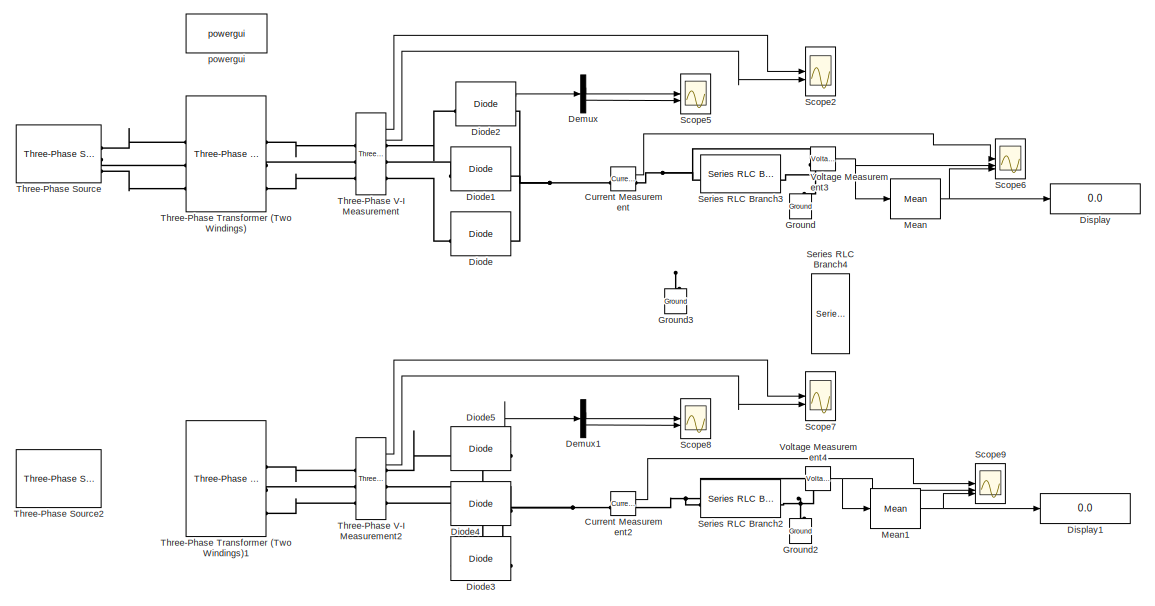
[diagram: root canvas - part 1/2, full width, top band]
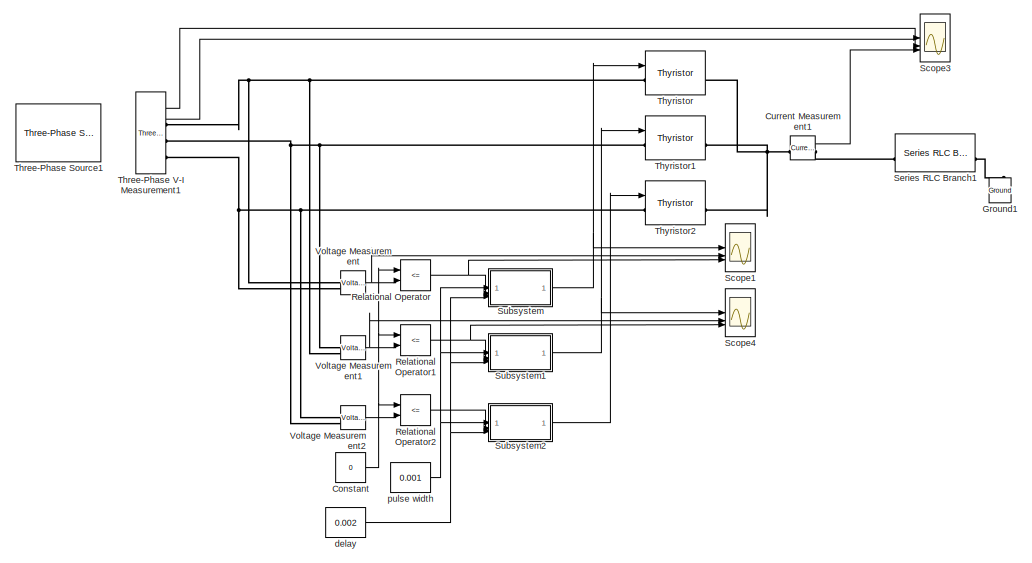
[diagram: root canvas - part 2/2, full width, bottom band]
MODEL slx_61ad994a2812
KIND model
CONFIG AbsTol = auto
CONFIG EnableMultiTasking = off
CONFIG FixedStep = auto
CONFIG MaxStep = auto
CONFIG MinStep = auto
CONFIG RelTol = 1e-3
CONFIG SampleTimeConstraint = Unconstrained
CONFIG SolverName = VariableStepAuto
CONFIG StartTime = 0.0
CONFIG StopTime = 0.065
BLOCK [Constant] Constant
  Value = 0
BLOCK [Reference] Current Measurement  REF=spsCurrentMeasurementLib/Current Measurement
  LibrarySourceBlock = sps_lib/Sensors and Measurements/Current Measurement
  SourceBlock = spsCurrentMeasurementLib/Current Measurement
  SourceType = Current Measurement
  UserDataPersistent = on
BLOCK [Reference] Current Measurement1  REF=spsCurrentMeasurementLib/Current Measurement
  LibrarySourceBlock = sps_lib/Sensors and Measurements/Current Measurement
  SourceBlock = spsCurrentMeasurementLib/Current Measurement
  SourceType = Current Measurement
  UserDataPersistent = on
BLOCK [Reference] Current Measurement2  REF=spsCurrentMeasurementLib/Current Measurement
  LibrarySourceBlock = sps_lib/Sensors and Measurements/Current Measurement
  SourceBlock = spsCurrentMeasurementLib/Current Measurement
  SourceType = Current Measurement
  UserDataPersistent = on
BLOCK [Demux] Demux
  Outputs = 2
BLOCK [Demux] Demux1
  Outputs = 2
BLOCK [Reference] Diode  REF=spsDiodeLib/Diode
  LibrarySourceBlock = sps_lib/Power Electronics/Diode
  SourceBlock = spsDiodeLib/Diode
  SourceType = Diode
BLOCK [Reference] Diode1  REF=spsDiodeLib/Diode
  LibrarySourceBlock = sps_lib/Power Electronics/Diode
  SourceBlock = spsDiodeLib/Diode
  SourceType = Diode
BLOCK [Reference] Diode2  REF=spsDiodeLib/Diode
  LibrarySourceBlock = sps_lib/Power Electronics/Diode
  SourceBlock = spsDiodeLib/Diode
  SourceType = Diode
BLOCK [Reference] Diode3  REF=spsDiodeLib/Diode
  LibrarySourceBlock = sps_lib/Power Electronics/Diode
  NameLocation = top
  SourceBlock = spsDiodeLib/Diode
  SourceType = Diode
BLOCK [Reference] Diode4  REF=spsDiodeLib/Diode
  LibrarySourceBlock = sps_lib/Power Electronics/Diode
  NameLocation = top
  SourceBlock = spsDiodeLib/Diode
  SourceType = Diode
BLOCK [Reference] Diode5  REF=spsDiodeLib/Diode
  LibrarySourceBlock = sps_lib/Power Electronics/Diode
  SourceBlock = spsDiodeLib/Diode
  SourceType = Diode
BLOCK [Display] Display
  Decimation = 1
BLOCK [Display] Display1
  Decimation = 1
BLOCK [Reference] Ground  REF=spsGroundLib/Ground
  LibrarySourceBlock = sps_lib/Utilities/Ground
  NameLocation = right
  SourceBlock = spsGroundLib/Ground
  SourceType = Ground
BLOCK [Reference] Ground1  REF=spsGroundLib/Ground
  LibrarySourceBlock = sps_lib/Utilities/Ground
  NameLocation = right
  SourceBlock = spsGroundLib/Ground
  SourceType = Ground
BLOCK [Reference] Ground2  REF=spsGroundLib/Ground
  LibrarySourceBlock = sps_lib/Utilities/Ground
  NameLocation = right
  SourceBlock = spsGroundLib/Ground
  SourceType = Ground
BLOCK [Reference] Ground3  REF=spsGroundLib/Ground
  LibrarySourceBlock = sps_lib/Utilities/Ground
  NameLocation = right
  SourceBlock = spsGroundLib/Ground
  SourceType = Ground
BLOCK [Reference] Mean  REF=spsMeanLib/Mean
  LibrarySourceBlock = sps_lib/Sensors and Measurements/Mean
  SourceBlock = spsMeanLib/Mean
  SourceType = Mean
BLOCK [Reference] Mean1  REF=spsMeanLib/Mean
  LibrarySourceBlock = sps_lib/Sensors and Measurements/Mean
  SourceBlock = spsMeanLib/Mean
  SourceType = Mean
BLOCK [RelationalOperator] Relational Operator
  InputSameDT = off
  Operator = <=
  OutDataTypeStr = boolean
  RndMeth = Simplest
BLOCK [RelationalOperator] Relational Operator1
  InputSameDT = off
  Operator = <=
  OutDataTypeStr = boolean
  RndMeth = Simplest
BLOCK [RelationalOperator] Relational Operator2
  InputSameDT = off
  Operator = <=
  OutDataTypeStr = boolean
  RndMeth = Simplest
BLOCK [Scope] Scope1
  Floating = off
  NumInputPorts = 3
  ScopeSpecificationString = Simulink.scopes.TimeScopeBlockCfg('CurrentConfiguration', extmgr.ConfigurationSet(extmgr.Configuration('Core','General UI',true),extmgr.Configuration('Core','Source UI',true),extmgr.Configuration('Sources','WiredSimulink',true),extmgr.Configuration('Visuals','Time Domain',true,'SerializedDisplays',{struct('MinYLimReal','-0.125','MaxYLimReal','1.125','YLabelReal','','MinYLimMag','0.00000','MaxYLimM...<+2721ch>
BLOCK [Scope] Scope2
  Floating = off
  NumInputPorts = 2
  ScopeSpecificationString = Simulink.scopes.TimeScopeBlockCfg('CurrentConfiguration', extmgr.ConfigurationSet(extmgr.Configuration('Core','General UI',true),extmgr.Configuration('Core','Source UI',true),extmgr.Configuration('Sources','WiredSimulink',true,'DataLoggingVariableName','ScopeData1'),extmgr.Configuration('Visuals','Time Domain',true,'SerializedDisplays',{struct('MinYLimReal','-1.84442','MaxYLimReal','1.84317','YLab...<+2211ch>
BLOCK [Scope] Scope3
  Floating = off
  NumInputPorts = 3
  ScopeSpecificationString = Simulink.scopes.TimeScopeBlockCfg('CurrentConfiguration', extmgr.ConfigurationSet(extmgr.Configuration('Core','General UI',true),extmgr.Configuration('Core','Source UI',true),extmgr.Configuration('Sources','WiredSimulink',true,'DataLoggingVariableName','ScopeData2'),extmgr.Configuration('Visuals','Time Domain',true,'SerializedDisplays',{struct('MinYLimReal','-26285.34486','MaxYLimReal','27773.6316...<+2990ch>
BLOCK [Scope] Scope4
  Floating = off
  NumInputPorts = 3
  ScopeSpecificationString = Simulink.scopes.TimeScopeBlockCfg('CurrentConfiguration', extmgr.ConfigurationSet(extmgr.Configuration('Core','General UI',true),extmgr.Configuration('Core','Source UI',true),extmgr.Configuration('Sources','WiredSimulink',true,'DataLoggingVariableName','ScopeData3'),extmgr.Configuration('Visuals','Time Domain',true,'SerializedDisplays',{struct('MinYLimReal','-0.125','MaxYLimReal','1.125','YLabelRe...<+2763ch>
BLOCK [Scope] Scope5
  Floating = off
  NumInputPorts = 2
  ScopeSpecificationString = Simulink.scopes.TimeScopeBlockCfg('CurrentConfiguration', extmgr.ConfigurationSet(extmgr.Configuration('Core','General UI',true),extmgr.Configuration('Core','Source UI',true),extmgr.Configuration('Sources','WiredSimulink',true,'DataLoggingVariableName','ScopeData1'),extmgr.Configuration('Visuals','Time Domain',true,'SerializedDisplays',{struct('MinYLimReal','-0.32095','MaxYLimReal','2.88859','YLab...<+2003ch>
BLOCK [Scope] Scope6
  Floating = off
  NumInputPorts = 3
  ScopeSpecificationString = Simulink.scopes.TimeScopeBlockCfg('CurrentConfiguration', extmgr.ConfigurationSet(extmgr.Configuration('Core','General UI',true),extmgr.Configuration('Core','Source UI',true),extmgr.Configuration('Sources','WiredSimulink',true,'DataLoggingVariableName','ScopeData2'),extmgr.Configuration('Visuals','Time Domain',true,'SerializedDisplays',{struct('MinYLimReal','-0.00051','MaxYLimReal','0.00457','YLab...<+2098ch>
BLOCK [Scope] Scope7
  Floating = off
  NumInputPorts = 2
  ScopeSpecificationString = Simulink.scopes.TimeScopeBlockCfg('CurrentConfiguration', extmgr.ConfigurationSet(extmgr.Configuration('Core','General UI',true),extmgr.Configuration('Core','Source UI',true),extmgr.Configuration('Sources','WiredSimulink',true,'DataLoggingVariableName','ScopeData1'),extmgr.Configuration('Visuals','Time Domain',true,'SerializedDisplays',{struct('MinYLimReal','-159.14062','MaxYLimReal','158.85917','...<+2217ch>
BLOCK [Scope] Scope8
  Floating = off
  NumInputPorts = 2
  ScopeSpecificationString = Simulink.scopes.TimeScopeBlockCfg('CurrentConfiguration', extmgr.ConfigurationSet(extmgr.Configuration('Core','General UI',true),extmgr.Configuration('Core','Source UI',true),extmgr.Configuration('Sources','WiredSimulink',true,'DataLoggingVariableName','ScopeData2'),extmgr.Configuration('Visuals','Time Domain',true,'SerializedDisplays',{struct('MinYLimReal','-0.32095','MaxYLimReal','2.88859','YLab...<+2003ch>
BLOCK [Scope] Scope9
  Floating = off
  NumInputPorts = 3
  ScopeSpecificationString = Simulink.scopes.TimeScopeBlockCfg('CurrentConfiguration', extmgr.ConfigurationSet(extmgr.Configuration('Core','General UI',true),extmgr.Configuration('Core','Source UI',true),extmgr.Configuration('Sources','WiredSimulink',true,'DataLoggingVariableName','ScopeData3'),extmgr.Configuration('Visuals','Time Domain',true,'SerializedDisplays',{struct('MinYLimReal','-1.20743','MaxYLimReal','0.13416','YLab...<+2102ch>
BLOCK [Reference] Series RLC Branch1  REF=spsSeriesRLCBranchLib/Series RLC Branch
  LibrarySourceBlock = sps_lib/Passives/Series RLC Branch
  SourceBlock = spsSeriesRLCBranchLib/Series RLC Branch
  SourceType = Series RLC Branch
BLOCK [Reference] Series RLC Branch2  REF=spsSeriesRLCBranchLib/Series RLC Branch
  LibrarySourceBlock = sps_lib/Passives/Series RLC Branch
  SourceBlock = spsSeriesRLCBranchLib/Series RLC Branch
  SourceType = Series RLC Branch
BLOCK [Reference] Series RLC Branch3  REF=spsSeriesRLCBranchLib/Series RLC Branch
  LibrarySourceBlock = sps_lib/Passives/Series RLC Branch
  SourceBlock = spsSeriesRLCBranchLib/Series RLC Branch
  SourceType = Series RLC Branch
BLOCK [Reference] Series RLC Branch4  REF=spsSeriesRLCBranchLib/Series RLC Branch
  LibrarySourceBlock = sps_lib/Passives/Series RLC Branch
  NameLocation = left
  SourceBlock = spsSeriesRLCBranchLib/Series RLC Branch
  SourceType = Series RLC Branch
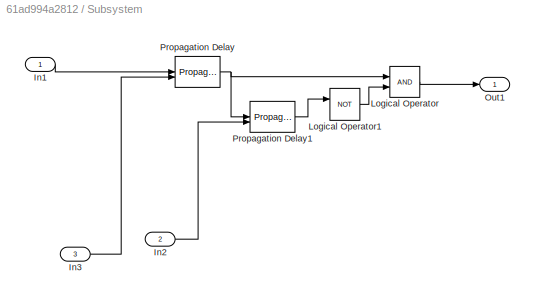
BLOCK [SubSystem] Subsystem
BLOCK [Inport] Subsystem/In1
BLOCK [Inport] Subsystem/In2
  Port = 2
BLOCK [Inport] Subsystem/In3
  Port = 3
BLOCK [Logic] Subsystem/Logical Operator
  AllPortsSameDT = off
  OutDataTypeStr = boolean
BLOCK [Logic] Subsystem/Logical Operator1
  AllPortsSameDT = off
  Operator = NOT
  OutDataTypeStr = boolean
BLOCK [Outport] Subsystem/Out1
BLOCK [PropagationDelay] Subsystem/Propagation Delay
BLOCK [PropagationDelay] Subsystem/Propagation Delay1
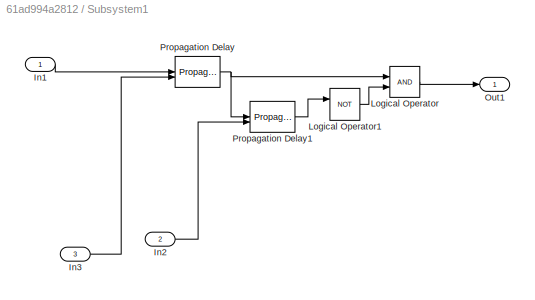
BLOCK [SubSystem] Subsystem1
BLOCK [Inport] Subsystem1/In1
BLOCK [Inport] Subsystem1/In2
  Port = 2
BLOCK [Inport] Subsystem1/In3
  Port = 3
BLOCK [Logic] Subsystem1/Logical Operator
  AllPortsSameDT = off
  OutDataTypeStr = boolean
BLOCK [Logic] Subsystem1/Logical Operator1
  AllPortsSameDT = off
  Operator = NOT
  OutDataTypeStr = boolean
BLOCK [Outport] Subsystem1/Out1
BLOCK [PropagationDelay] Subsystem1/Propagation Delay
BLOCK [PropagationDelay] Subsystem1/Propagation Delay1
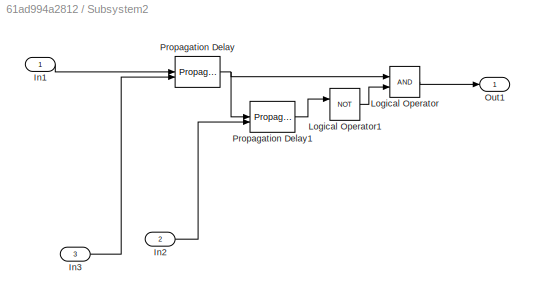
BLOCK [SubSystem] Subsystem2
BLOCK [Inport] Subsystem2/In1
BLOCK [Inport] Subsystem2/In2
  Port = 2
BLOCK [Inport] Subsystem2/In3
  Port = 3
BLOCK [Logic] Subsystem2/Logical Operator
  AllPortsSameDT = off
  OutDataTypeStr = boolean
BLOCK [Logic] Subsystem2/Logical Operator1
  AllPortsSameDT = off
  Operator = NOT
  OutDataTypeStr = boolean
BLOCK [Outport] Subsystem2/Out1
BLOCK [PropagationDelay] Subsystem2/Propagation Delay
BLOCK [PropagationDelay] Subsystem2/Propagation Delay1
BLOCK [Reference] Three-Phase Source  REF=spsThreePhaseSourceLib/Three-Phase Source
  LibrarySourceBlock = sps_lib/Sources/Three-Phase Source
  SourceBlock = spsThreePhaseSourceLib/Three-Phase Source
  SourceType = Three-Phase Source
BLOCK [Reference] Three-Phase Source1  REF=spsThreePhaseSourceLib/Three-Phase Source
  LibrarySourceBlock = sps_lib/Sources/Three-Phase Source
  SourceBlock = spsThreePhaseSourceLib/Three-Phase Source
  SourceType = Three-Phase Source
BLOCK [Reference] Three-Phase Source2  REF=spsThreePhaseSourceLib/Three-Phase Source
  LibrarySourceBlock = sps_lib/Sources/Three-Phase Source
  SourceBlock = spsThreePhaseSourceLib/Three-Phase Source
  SourceType = Three-Phase Source
BLOCK [Reference] Three-Phase Transformer (Two Windings)  REF=spsThreePhaseTransformerTwoWindingsLib/Three-Phase
Transformer
(Two Windings)
  LibrarySourceBlock = sps_lib/Power Grid Elements/Three-Phase\nTransformer\n(Two Windings)
  SourceBlock = spsThreePhaseTransformerTwoWindingsLib/Three-Phase\nTransformer\n(Two Windings)
  SourceType = Three-Phase Transformer (Two Windings)
BLOCK [Reference] Three-Phase Transformer (Two Windings)1  REF=spsThreePhaseTransformerTwoWindingsLib/Three-Phase
Transformer
(Two Windings)
  LibrarySourceBlock = sps_lib/Power Grid Elements/Three-Phase\nTransformer\n(Two Windings)
  SourceBlock = spsThreePhaseTransformerTwoWindingsLib/Three-Phase\nTransformer\n(Two Windings)
  SourceType = Three-Phase Transformer (Two Windings)
BLOCK [Reference] Three-Phase V-I Measurement  REF=spsThreePhaseVIMeasurementLib/Three-Phase
V-I Measurement
  LibrarySourceBlock = sps_lib/Sensors and Measurements/Three-Phase\nV-I Measurement
  SourceBlock = spsThreePhaseVIMeasurementLib/Three-Phase\nV-I Measurement
  SourceType = Three-Phase VI Measurement
BLOCK [Reference] Three-Phase V-I Measurement1  REF=spsThreePhaseVIMeasurementLib/Three-Phase
V-I Measurement
  LibrarySourceBlock = sps_lib/Sensors and Measurements/Three-Phase\nV-I Measurement
  SourceBlock = spsThreePhaseVIMeasurementLib/Three-Phase\nV-I Measurement
  SourceType = Three-Phase VI Measurement
BLOCK [Reference] Three-Phase V-I Measurement2  REF=spsThreePhaseVIMeasurementLib/Three-Phase
V-I Measurement
  LibrarySourceBlock = sps_lib/Sensors and Measurements/Three-Phase\nV-I Measurement
  SourceBlock = spsThreePhaseVIMeasurementLib/Three-Phase\nV-I Measurement
  SourceType = Three-Phase VI Measurement
BLOCK [Reference] Thyristor  REF=spsThyristorLib/Thyristor
  LibrarySourceBlock = sps_lib/Power Electronics/Thyristor
  SourceBlock = spsThyristorLib/Thyristor
  SourceType = Thyristor
BLOCK [Reference] Thyristor1  REF=spsThyristorLib/Thyristor
  LibrarySourceBlock = sps_lib/Power Electronics/Thyristor
  SourceBlock = spsThyristorLib/Thyristor
  SourceType = Thyristor
BLOCK [Reference] Thyristor2  REF=spsThyristorLib/Thyristor
  LibrarySourceBlock = sps_lib/Power Electronics/Thyristor
  SourceBlock = spsThyristorLib/Thyristor
  SourceType = Thyristor
BLOCK [Reference] Voltage Measurement  REF=spsVoltageMeasurementLib/Voltage Measurement
  LibrarySourceBlock = sps_lib/Sensors and Measurements/Voltage Measurement
  SourceBlock = spsVoltageMeasurementLib/Voltage Measurement
  SourceType = Voltage Measurement
  UserDataPersistent = on
BLOCK [Reference] Voltage Measurement1  REF=spsVoltageMeasurementLib/Voltage Measurement
  LibrarySourceBlock = sps_lib/Sensors and Measurements/Voltage Measurement
  SourceBlock = spsVoltageMeasurementLib/Voltage Measurement
  SourceType = Voltage Measurement
  UserDataPersistent = on
BLOCK [Reference] Voltage Measurement2  REF=spsVoltageMeasurementLib/Voltage Measurement
  LibrarySourceBlock = sps_lib/Sensors and Measurements/Voltage Measurement
  SourceBlock = spsVoltageMeasurementLib/Voltage Measurement
  SourceType = Voltage Measurement
  UserDataPersistent = on
BLOCK [Reference] Voltage Measurement3  REF=spsVoltageMeasurementLib/Voltage Measurement
  LibrarySourceBlock = sps_lib/Sensors and Measurements/Voltage Measurement
  SourceBlock = spsVoltageMeasurementLib/Voltage Measurement
  SourceType = Voltage Measurement
  UserDataPersistent = on
BLOCK [Reference] Voltage Measurement4  REF=spsVoltageMeasurementLib/Voltage Measurement
  LibrarySourceBlock = sps_lib/Sensors and Measurements/Voltage Measurement
  SourceBlock = spsVoltageMeasurementLib/Voltage Measurement
  SourceType = Voltage Measurement
  UserDataPersistent = on
BLOCK [Constant] delay
  Value = 0.002
BLOCK [Reference] powergui  REF=sps_lib/powergui
  LibrarySourceBlock = sps_lib/powergui
  Priority = 1
  SourceBlock = sps_lib/powergui
  SourceType = PSB option menu block
BLOCK [Constant] pulse width
  Value = 0.001
NET Constant:1 -> Relational Operator1:1, Relational Operator2:1, Relational Operator:1
LINE Current Measurement1:1 -> Scope3:3
LINE Current Measurement2:1 -> Scope9:1
LINE Current Measurement:1 -> Scope6:1
LINE Demux1:1 -> Scope8:1
LINE Demux1:2 -> Scope8:2
LINE Demux:1 -> Scope5:1
LINE Demux:2 -> Scope5:2
LINE Diode2:1 -> Demux:1
LINE Diode5:1 -> Demux1:1
NET Mean1:1 -> Display1:1, Scope9:3
NET Mean:1 -> Display:1, Scope6:3
NET Relational Operator1:1 -> Scope4:3, Subsystem1:1
LINE Relational Operator2:1 -> Subsystem2:1
NET Relational Operator:1 -> Scope1:3, Subsystem:1
LINE Subsystem/In1:1 -> Subsystem/Propagation Delay:1
LINE Subsystem/In2:1 -> Subsystem/Propagation Delay1:2
LINE Subsystem/In3:1 -> Subsystem/Propagation Delay:2
LINE Subsystem/Logical Operator1:1 -> Subsystem/Logical Operator:2
LINE Subsystem/Logical Operator:1 -> Subsystem/Out1:1
LINE Subsystem/Propagation Delay1:1 -> Subsystem/Logical Operator1:1
NET Subsystem/Propagation Delay:1 -> Subsystem/Logical Operator:1, Subsystem/Propagation Delay1:1
LINE Subsystem1/In1:1 -> Subsystem1/Propagation Delay:1
LINE Subsystem1/In2:1 -> Subsystem1/Propagation Delay1:2
LINE Subsystem1/In3:1 -> Subsystem1/Propagation Delay:2
LINE Subsystem1/Logical Operator1:1 -> Subsystem1/Logical Operator:2
LINE Subsystem1/Logical Operator:1 -> Subsystem1/Out1:1
LINE Subsystem1/Propagation Delay1:1 -> Subsystem1/Logical Operator1:1
NET Subsystem1/Propagation Delay:1 -> Subsystem1/Logical Operator:1, Subsystem1/Propagation Delay1:1
NET Subsystem1:1 -> Scope4:1, Thyristor1:1
LINE Subsystem2/In1:1 -> Subsystem2/Propagation Delay:1
LINE Subsystem2/In2:1 -> Subsystem2/Propagation Delay1:2
LINE Subsystem2/In3:1 -> Subsystem2/Propagation Delay:2
LINE Subsystem2/Logical Operator1:1 -> Subsystem2/Logical Operator:2
LINE Subsystem2/Logical Operator:1 -> Subsystem2/Out1:1
LINE Subsystem2/Propagation Delay1:1 -> Subsystem2/Logical Operator1:1
NET Subsystem2/Propagation Delay:1 -> Subsystem2/Logical Operator:1, Subsystem2/Propagation Delay1:1
LINE Subsystem2:1 -> Thyristor2:1
NET Subsystem:1 -> Scope1:1, Thyristor:1
LINE Three-Phase V-I Measurement1:1 -> Scope3:1
LINE Three-Phase V-I Measurement1:2 -> Scope3:2
LINE Three-Phase V-I Measurement2:1 -> Scope7:1
LINE Three-Phase V-I Measurement2:2 -> Scope7:2
LINE Three-Phase V-I Measurement:1 -> Scope2:1
LINE Three-Phase V-I Measurement:2 -> Scope2:2
NET Voltage Measurement1:1 -> Relational Operator1:2, Scope4:2
LINE Voltage Measurement2:1 -> Relational Operator2:2
NET Voltage Measurement3:1 -> Mean:1, Scope6:2
NET Voltage Measurement4:1 -> Mean1:1, Scope9:2
NET Voltage Measurement:1 -> Relational Operator:2, Scope1:2
NET delay:1 -> Subsystem1:3, Subsystem2:3, Subsystem:3
NET pulse width:1 -> Subsystem1:2, Subsystem2:2, Subsystem:2
PNET net1: Current Measurement1:LConn1 -- Thyristor1:RConn1 -- Thyristor2:RConn1 -- Thyristor:RConn1
PLINE Current Measurement1:RConn1 -- Series RLC Branch1:LConn1
PNET net2: Current Measurement2:LConn1 -- Diode3:LConn1 -- Diode4:LConn1 -- Diode5:LConn1
PNET net3: Current Measurement2:RConn1 -- Series RLC Branch2:LConn1 -- Voltage Measurement4:LConn1
PNET net4: Current Measurement:LConn1 -- Diode1:RConn1 -- Diode2:RConn1 -- Diode:RConn1
PNET net5: Current Measurement:RConn1 -- Series RLC Branch3:LConn1 -- Voltage Measurement3:LConn1
PLINE Diode1:LConn1 -- Three-Phase V-I Measurement:RConn2
PLINE Diode2:LConn1 -- Three-Phase V-I Measurement:RConn1
PLINE Diode3:RConn1 -- Three-Phase V-I Measurement2:RConn3
PLINE Diode4:RConn1 -- Three-Phase V-I Measurement2:RConn2
PLINE Diode5:RConn1 -- Three-Phase V-I Measurement2:RConn1
PLINE Diode:LConn1 -- Three-Phase V-I Measurement:RConn3
PLINE Ground1:LConn1 -- Series RLC Branch1:RConn1
PNET net6: Ground2:LConn1 -- Series RLC Branch2:RConn1 -- Voltage Measurement4:LConn2
PNET net7: Ground:LConn1 -- Series RLC Branch3:RConn1 -- Voltage Measurement3:LConn2
PLINE Three-Phase Source:RConn1 -- Three-Phase Transformer (Two Windings):LConn1
PLINE Three-Phase Source:RConn2 -- Three-Phase Transformer (Two Windings):LConn2
PLINE Three-Phase Source:RConn3 -- Three-Phase Transformer (Two Windings):LConn3
PLINE Three-Phase Transformer (Two Windings)1:RConn1 -- Three-Phase V-I Measurement2:LConn1
PLINE Three-Phase Transformer (Two Windings)1:RConn2 -- Three-Phase V-I Measurement2:LConn2
PLINE Three-Phase Transformer (Two Windings)1:RConn3 -- Three-Phase V-I Measurement2:LConn3
PLINE Three-Phase Transformer (Two Windings):RConn1 -- Three-Phase V-I Measurement:LConn1
PLINE Three-Phase Transformer (Two Windings):RConn2 -- Three-Phase V-I Measurement:LConn2
PLINE Three-Phase Transformer (Two Windings):RConn3 -- Three-Phase V-I Measurement:LConn3
PNET net8: Three-Phase V-I Measurement1:RConn1 -- Thyristor:LConn1 -- Voltage Measurement1:LConn2 -- Voltage Measurement:LConn1
PNET net9: Three-Phase V-I Measurement1:RConn2 -- Thyristor1:LConn1 -- Voltage Measurement1:LConn1 -- Voltage Measurement2:LConn2
PNET net10: Three-Phase V-I Measurement1:RConn3 -- Thyristor2:LConn1 -- Voltage Measurement2:LConn1 -- Voltage Measurement:LConn2
note: NET lines group one-source signal fan-out (src -> all destinations, sorted); 1:1 wires keep LINE; PNET lines group multi-terminal physical nets as a canonical sorted terminal list (undirected conserving connections); 2-terminal nets keep the pairwise PLINE form
